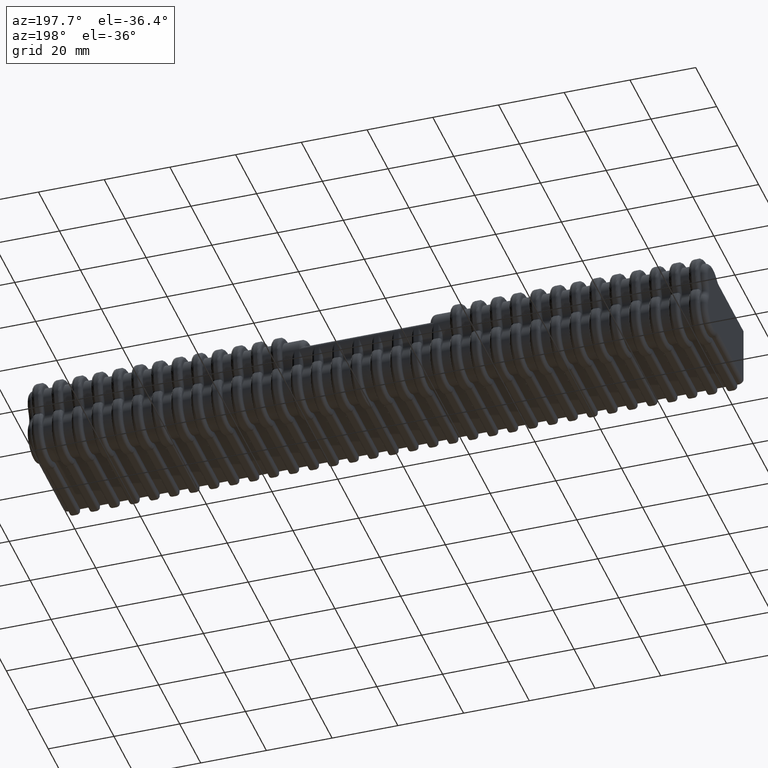
[diagram: clean part render]
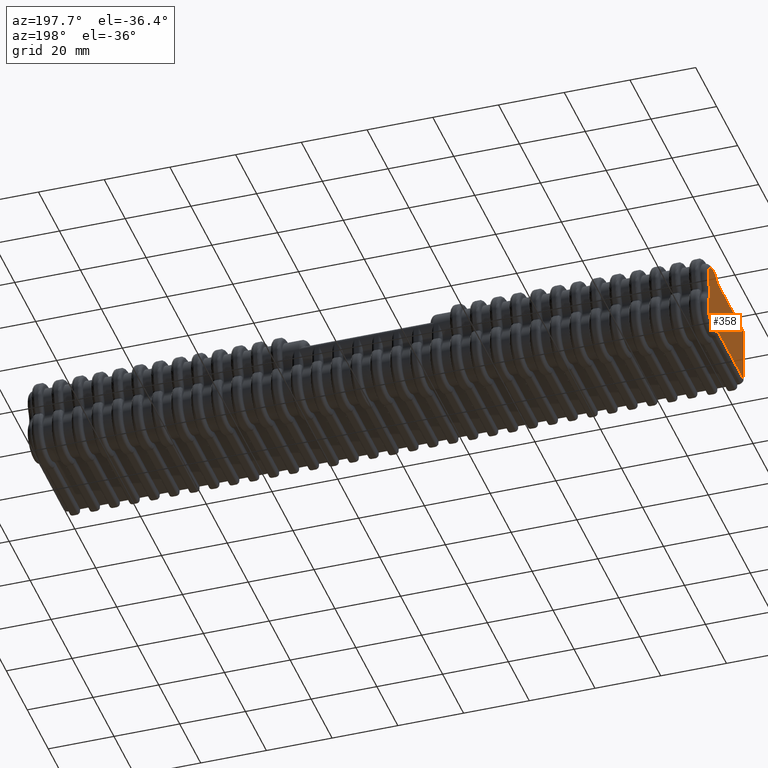
[diagram: same view with one face highlighted and labeled with its STEP entity id]
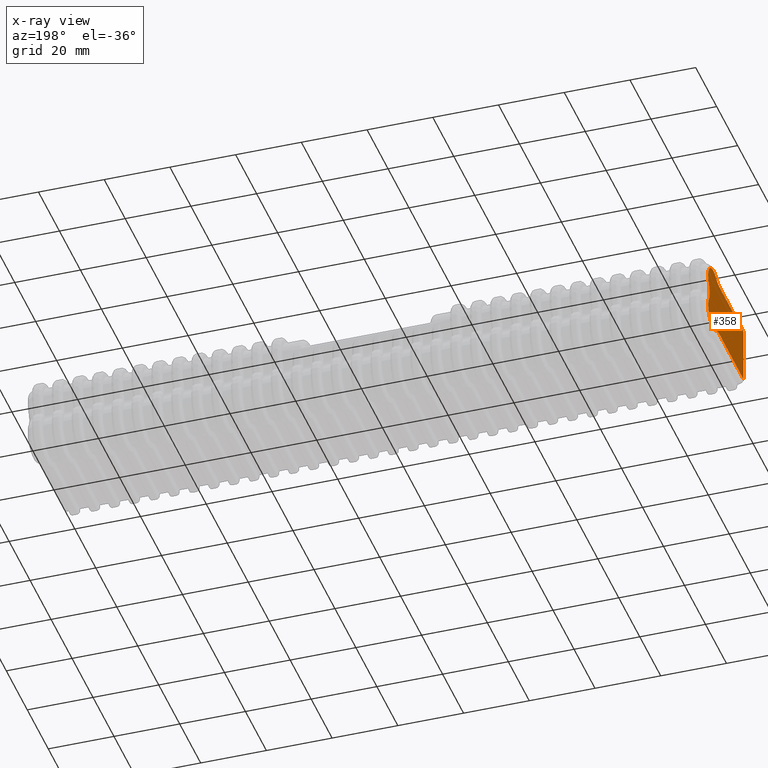
[diagram: x-ray of the same camera — body ghosted, the highlighted face saturated]
A machine part, auxiliary view. The second image highlights one B-rep face of the part: STEP entity #358.
The next image is the same camera in x-ray: the body ghosted, the highlighted face saturated — about 0% of this face is hidden behind the body in this view.
In plain terms, the highlighted planar face has unit normal (-1, -0, -0).
Its self-contained STEP definition (entity closure, byte-faithful):
#358 = ADVANCED_FACE( '', ( #1509 ), #1510, .T. );
#1509 = FACE_OUTER_BOUND( '', #3725, .T. );
#1510 = PLANE( '', #3726 );
#3725 = EDGE_LOOP( '', ( #6592, #6593, #6594, #6595, #6596, #6597, #6598, #6599 ) );
#3726 = AXIS2_PLACEMENT_3D( '', #6600, #6601, #6602 );
#6592 = ORIENTED_EDGE( '', *, *, #15306, .T. );
#6593 = ORIENTED_EDGE( '', *, *, #15771, .T. );
#6594 = ORIENTED_EDGE( '', *, *, #15772, .T. );
#6595 = ORIENTED_EDGE( '', *, *, #15773, .T. );
#6596 = ORIENTED_EDGE( '', *, *, #15774, .T. );
#6597 = ORIENTED_EDGE( '', *, *, #15775, .T. );
#6598 = ORIENTED_EDGE( '', *, *, #15776, .T. );
#6599 = ORIENTED_EDGE( '', *, *, #15777, .T. );
#6600 = CARTESIAN_POINT( '', ( -103.500000000000, -3.46944695195361E-015, -10.0000000000000 ) );
#6601 = DIRECTION( '', ( -1.00000000000000, -3.31166777813623E-032, -1.80284751248131E-016 ) );
#6602 = DIRECTION( '', ( 1.80284751248131E-016, -1.83690953073357E-016, -1.00000000000000 ) );
#15306 = EDGE_CURVE( '', #18378, #18376, #18379, .T. );
#15771 = EDGE_CURVE( '', #18376, #19271, #19272, .T. );
#15772 = EDGE_CURVE( '', #19271, #19273, #19274, .F. );
#15773 = EDGE_CURVE( '', #19273, #19275, #19276, .T. );
#15774 = EDGE_CURVE( '', #19275, #19277, #19278, .F. );
#15775 = EDGE_CURVE( '', #19277, #19279, #19280, .T. );
#15776 = EDGE_CURVE( '', #19279, #19281, #19282, .F. );
#15777 = EDGE_CURVE( '', #19281, #18378, #19283, .F. );
#18376 = VERTEX_POINT( '', #23326 );
#18378 = VERTEX_POINT( '', #23328 );
#18379 = LINE( '', #23329, #23330 );
#19271 = VERTEX_POINT( '', #24923 );
#19272 = LINE( '', #24924, #24925 );
#19273 = VERTEX_POINT( '', #24926 );
#19274 = CIRCLE( '', #24927, 4.50000000000000 );
#19275 = VERTEX_POINT( '', #24928 );
#19276 = CIRCLE( '', #24929, 5.00000000000001 );
#19277 = VERTEX_POINT( '', #24930 );
#19278 = CIRCLE( '', #24931, 5.00000000000000 );
#19279 = VERTEX_POINT( '', #24932 );
#19280 = CIRCLE( '', #24933, 5.00000000000001 );
#19281 = VERTEX_POINT( '', #24934 );
#19282 = CIRCLE( '', #24935, 4.50000000000000 );
#19283 = LINE( '', #24936, #24937 );
#23326 = CARTESIAN_POINT( '', ( -103.500000000000, -3.46944695195361E-015, 8.49999999999998 ) );
#23328 = CARTESIAN_POINT( '', ( -103.500000000000, -3.46944695195361E-015, -8.50000000000003 ) );
#23329 = CARTESIAN_POINT( '', ( -103.500000000000, -3.46944695195361E-015, -10.0000000000000 ) );
#23330 = VECTOR( '', #35358, 1000.00000000000 );
#24923 = CARTESIAN_POINT( '', ( -103.500000000000, 23.2366290409446, 8.49999999999994 ) );
#24924 = CARTESIAN_POINT( '', ( -103.500000000000, -3.46944695195361E-015, 8.49999999999998 ) );
#24925 = VECTOR( '', #36026, 1000.00000000000 );
#24926 = CARTESIAN_POINT( '', ( -103.500000000000, 25.8709240345943, 9.35164559199185 ) );
#24927 = AXIS2_PLACEMENT_3D( '', #36027, #36028, #36029 );
#24928 = CARTESIAN_POINT( '', ( -103.500000000000, 32.9292875107491, 2.48157512190573 ) );
#24929 = AXIS2_PLACEMENT_3D( '', #36030, #36031, #36032 );
#24930 = CARTESIAN_POINT( '', ( -103.500000000000, 32.9292875107499, -2.48157512190725 ) );
#24931 = AXIS2_PLACEMENT_3D( '', #36033, #36034, #36035 );
#24932 = CARTESIAN_POINT( '', ( -103.500000000000, 25.8709240345942, -9.35164559199195 ) );
#24933 = AXIS2_PLACEMENT_3D( '', #36036, #36037, #36038 );
#24934 = CARTESIAN_POINT( '', ( -103.500000000000, 23.2366290409445, -8.50000000000005 ) );
#24935 = AXIS2_PLACEMENT_3D( '', #36039, #36040, #36041 );
#24936 = CARTESIAN_POINT( '', ( -103.500000000000, -3.46944695195361E-015, -8.50000000000003 ) );
#24937 = VECTOR( '', #36042, 1000.00000000000 );
#35358 = DIRECTION( '', ( -1.80284751248131E-016, 1.83690953073357E-016, 1.00000000000000 ) );
#36026 = DIRECTION( '', ( 0.000000000000000, 1.00000000000000, -1.83690953073357E-016 ) );
#36027 = CARTESIAN_POINT( '', ( -103.500000000000, 23.2366290409446, 12.9999999999999 ) );
#36028 = DIRECTION( '', ( -1.00000000000000, -3.31166777813622E-032, -1.80284751248131E-016 ) );
#36029 = DIRECTION( '', ( -1.80284751248131E-016, 1.83690953073357E-016, 1.00000000000000 ) );
#36030 = CARTESIAN_POINT( '', ( -103.500000000000, 28.7979184719829, 5.29791847198284 ) );
#36031 = DIRECTION( '', ( -1.00000000000000, -3.31166777813623E-032, -1.80284751248131E-016 ) );
#36032 = DIRECTION( '', ( -1.80284751248131E-016, 1.83690953073357E-016, 1.00000000000000 ) );
#36033 = CARTESIAN_POINT( '', ( -103.500000000000, 37.2700000000000, -5.55111512312578E-014 ) );
#36034 = DIRECTION( '', ( -1.00000000000000, -3.31166777813623E-032, -1.80284751248131E-016 ) );
#36035 = DIRECTION( '', ( -1.80284751248131E-016, 1.83690953073357E-016, 1.00000000000000 ) );
#36036 = CARTESIAN_POINT( '', ( -103.500000000000, 28.7979184719827, -5.29791847198292 ) );
#36037 = DIRECTION( '', ( -1.00000000000000, -3.31166777813623E-032, -1.80284751248131E-016 ) );
#36038 = DIRECTION( '', ( -1.80284751248131E-016, 1.83690953073357E-016, 1.00000000000000 ) );
#36039 = CARTESIAN_POINT( '', ( -103.500000000000, 23.2366290409445, -13.0000000000001 ) );
#36040 = DIRECTION( '', ( -1.00000000000000, -3.31166777813622E-032, -1.80284751248131E-016 ) );
#36041 = DIRECTION( '', ( -1.80284751248131E-016, 1.83690953073357E-016, 1.00000000000000 ) );
#36042 = DIRECTION( '', ( 0.000000000000000, 1.00000000000000, -1.83690953073357E-016 ) );